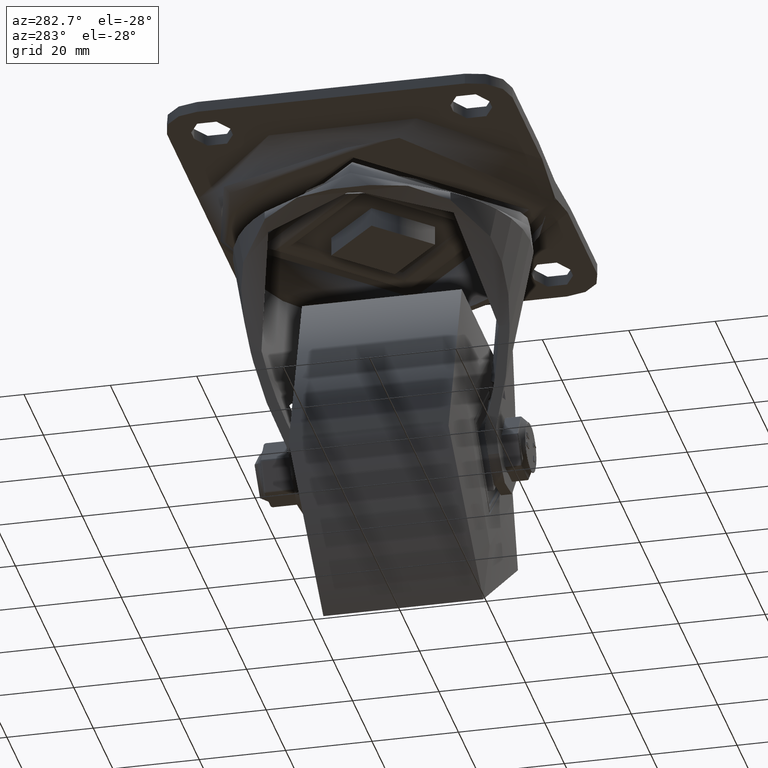
[diagram: clean part render]
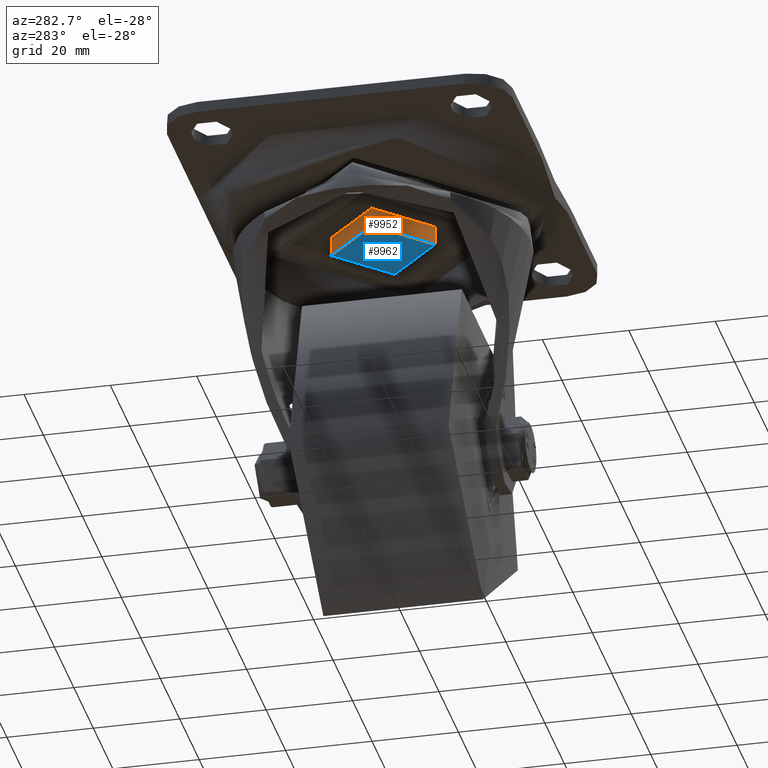
[diagram: same view with the hole feature highlighted: cylindrical wall and planar end face, labeled with their STEP entity ids]
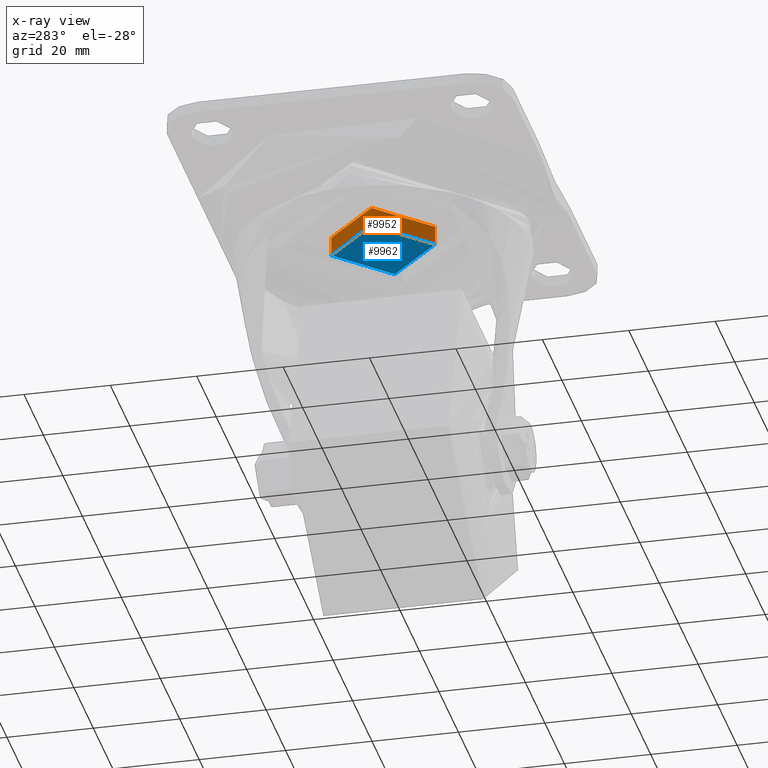
[diagram: x-ray of the same camera — body ghosted, the hole faces saturated]
A machine part, auxiliary view. The highlighted faces form one hole feature of diameter 24 mm: the cylindrical wall (entity #9952, orange) and its adjacent planar end face (entity #9962, blue) — they share a circular edge in the B-rep.
The next image is the same camera in x-ray (body ghosted, the hole faces saturated) — the bore reads through the body.
Wall:
#1264=CYLINDRICAL_SURFACE('',#10813,12.);
#1491=LINE('',#14763,#2050);
#2050=VECTOR('',#12046,12.);
#2612=FACE_OUTER_BOUND('',#3234,.T.);
#3234=EDGE_LOOP('',(#7095,#7096,#7097,#7098));
#3945=CIRCLE('',#10814,12.);
#3946=CIRCLE('',#10815,12.);
#4461=VERTEX_POINT('',#14760);
#4462=VERTEX_POINT('',#14762);
#5472=EDGE_CURVE('',#4461,#4461,#3945,.T.);
#5473=EDGE_CURVE('',#4461,#4462,#1491,.T.);
#5474=EDGE_CURVE('',#4462,#4462,#3946,.T.);
#7095=ORIENTED_EDGE('',*,*,#5472,.T.);
#7096=ORIENTED_EDGE('',*,*,#5473,.T.);
#7097=ORIENTED_EDGE('',*,*,#5474,.F.);
#7098=ORIENTED_EDGE('',*,*,#5473,.F.);
#9952=ADVANCED_FACE('',(#2612),#1264,.T.);
#10813=AXIS2_PLACEMENT_3D('',#14759,#12042,#12043);
#10814=AXIS2_PLACEMENT_3D('',#14761,#12044,#12045);
#10815=AXIS2_PLACEMENT_3D('',#14764,#12047,#12048);
#12042=DIRECTION('center_axis',(0.,0.,1.));
#12043=DIRECTION('ref_axis',(-1.,0.,0.));
#12044=DIRECTION('center_axis',(0.,0.,-1.));
#12045=DIRECTION('ref_axis',(-1.,0.,0.));
#12046=DIRECTION('',(0.,0.,-1.));
#12047=DIRECTION('center_axis',(0.,0.,-1.));
#12048=DIRECTION('ref_axis',(-1.,0.,0.));
#14759=CARTESIAN_POINT('Origin',(568.740824994599,-462.775587103942,-16.0003655769376));
#14760=CARTESIAN_POINT('',(580.740824994599,-462.775587103942,-9.7578201443323));
#14761=CARTESIAN_POINT('Origin',(568.740824994599,-462.775587103942,-9.7578201443323));
#14762=CARTESIAN_POINT('',(580.740824994599,-462.775587103942,-14.2578201443323));
#14763=CARTESIAN_POINT('',(580.740824994599,-462.775587103942,-16.0003655769376));
#14764=CARTESIAN_POINT('Origin',(568.740824994599,-462.775587103942,-14.2578201443323));
End face:
#622=PLANE('',#10835);
#2622=FACE_OUTER_BOUND('',#3247,.T.);
#3247=EDGE_LOOP('',(#7126));
#3946=CIRCLE('',#10815,12.);
#4462=VERTEX_POINT('',#14762);
#5474=EDGE_CURVE('',#4462,#4462,#3946,.T.);
#7126=ORIENTED_EDGE('',*,*,#5474,.T.);
#9962=ADVANCED_FACE('',(#2622),#622,.T.);
#10815=AXIS2_PLACEMENT_3D('',#14764,#12047,#12048);
#10835=AXIS2_PLACEMENT_3D('',#14795,#12090,#12091);
#12047=DIRECTION('center_axis',(0.,0.,-1.));
#12048=DIRECTION('ref_axis',(-1.,0.,0.));
#12090=DIRECTION('center_axis',(0.,0.,-1.));
#12091=DIRECTION('ref_axis',(0.,-1.,0.));
#14762=CARTESIAN_POINT('',(580.740824994599,-462.775587103942,-14.2578201443323));
#14764=CARTESIAN_POINT('Origin',(568.740824994599,-462.775587103942,-14.2578201443323));
#14795=CARTESIAN_POINT('Origin',(568.740824994599,-462.775587103942,-14.2578201443323));